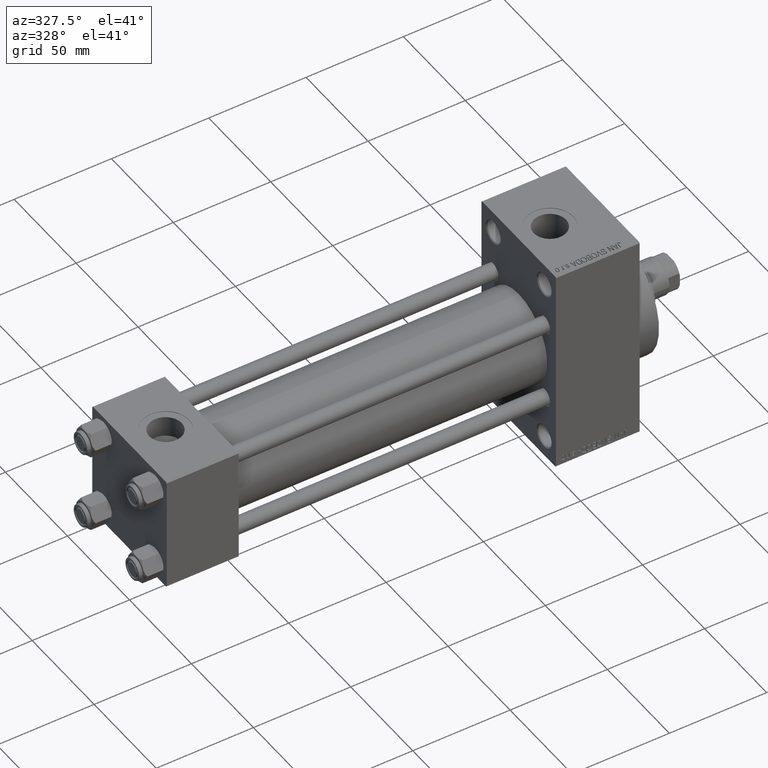
[diagram: clean part render]
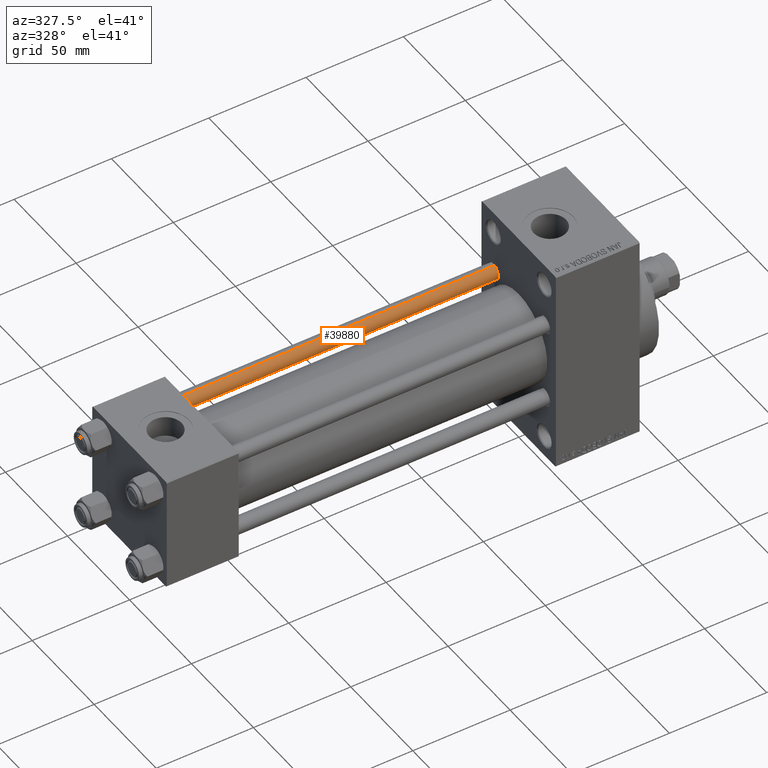
[diagram: same view with one face highlighted and labeled with its STEP entity id]
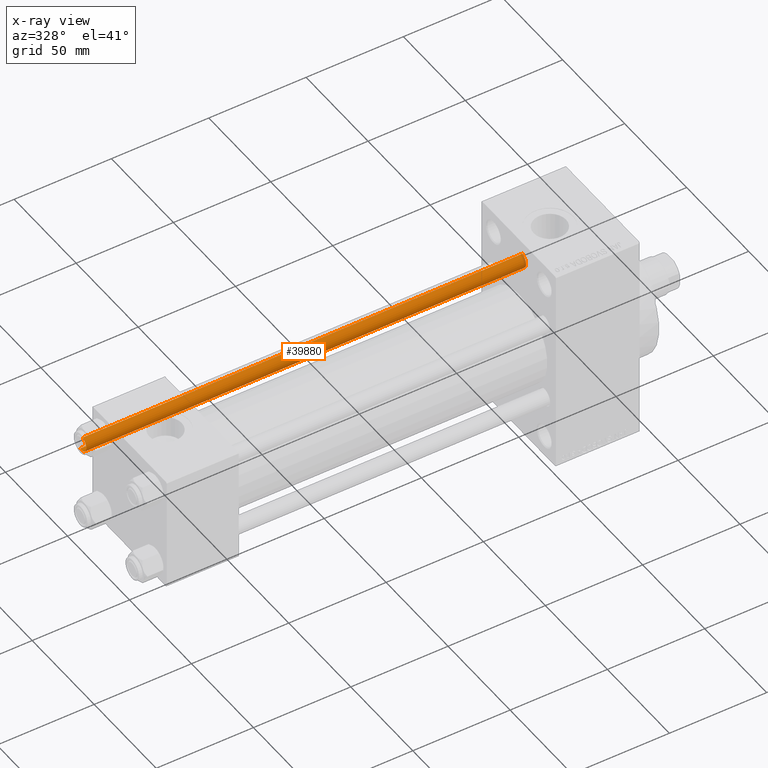
[diagram: x-ray of the same camera — body ghosted, the highlighted face saturated]
A machine part, auxiliary view. The second image highlights one B-rep face of the part: STEP entity #39880.
The next image is the same camera in x-ray: the body ghosted, the highlighted face saturated — about 0% of this face is hidden behind the body in this view.
In plain terms, the highlighted cylindrical surface (edge-blend (fillet) strip) has radius 4 mm, axis along (-1, -0, 0).
Its self-contained STEP definition (entity closure, byte-faithful):
#459 = CARTESIAN_POINT ( 'NONE',  ( -4.000000000000000000, 0.000000000000000000, 0.5000000000002224887 ) ) ;
#4091 = ORIENTED_EDGE ( 'NONE', *, *, #43008, .T. ) ;
#6348 = AXIS2_PLACEMENT_3D ( 'NONE', #23615, #46552, #12402 ) ;
#8027 = VERTEX_POINT ( 'NONE', #45391 ) ;
#8787 = ORIENTED_EDGE ( 'NONE', *, *, #16274, .F. ) ;
#9733 = EDGE_LOOP ( 'NONE', ( #8787, #19231, #4091, #45658 ) ) ;
#12402 = DIRECTION ( 'NONE',  ( 1.000000000000000000, 0.000000000000000000, 0.000000000000000000 ) ) ;
#15628 = AXIS2_PLACEMENT_3D ( 'NONE', #44604, #24893, #37368 ) ;
#15891 = FACE_OUTER_BOUND ( 'NONE', #9733, .T. ) ;
#15902 = DIRECTION ( 'NONE',  ( -0.000000000000000000, -0.000000000000000000, -1.000000000000000000 ) ) ;
#16210 = CARTESIAN_POINT ( 'NONE',  ( -4.000000000000000000, 0.000000000000000000, 227.0000000000000000 ) ) ;
#16274 = EDGE_CURVE ( 'NONE', #26200, #46149, #46318, .T. ) ;
#16381 = VECTOR ( 'NONE', #15902, 1000.000000000000000 ) ;
#19231 = ORIENTED_EDGE ( 'NONE', *, *, #21653, .T. ) ;
#21653 = EDGE_CURVE ( 'NONE', #26200, #8027, #33975, .T. ) ;
#23615 = CARTESIAN_POINT ( 'NONE',  ( 0.000000000000000000, 0.000000000000000000, 0.5000000000002224887 ) ) ;
#23626 = CARTESIAN_POINT ( 'NONE',  ( 4.000000000000000000, 4.898587196589411843E-16, 227.0000000000000000 ) ) ;
#23831 = VERTEX_POINT ( 'NONE', #459 ) ;
#24893 = DIRECTION ( 'NONE',  ( 0.000000000000000000, 0.000000000000000000, -1.000000000000000000 ) ) ;
#26200 = VERTEX_POINT ( 'NONE', #45225 ) ;
#27432 = LINE ( 'NONE', #16210, #31508 ) ;
#28569 = EDGE_CURVE ( 'NONE', #23831, #46149, #32634, .T. ) ;
#29460 = CYLINDRICAL_SURFACE ( 'NONE', #43237, 4.000000000000000000 ) ;
#31508 = VECTOR ( 'NONE', #46139, 1000.000000000000000 ) ;
#32634 = CIRCLE ( 'NONE', #6348, 4.000000000000000000 ) ;
#33442 = DIRECTION ( 'NONE',  ( -1.000000000000000000, 0.000000000000000000, 0.000000000000000000 ) ) ;
#33975 = CIRCLE ( 'NONE', #15628, 4.000000000000000000 ) ;
#34631 = CARTESIAN_POINT ( 'NONE',  ( 4.000000000000000000, 4.898587196589411843E-16, 0.5000000000002224887 ) ) ;
#37368 = DIRECTION ( 'NONE',  ( 1.000000000000000000, 0.000000000000000000, 0.000000000000000000 ) ) ;
#39880 = ADVANCED_FACE ( 'NONE', ( #15891 ), #29460, .T. ) ;
#41411 = DIRECTION ( 'NONE',  ( -0.000000000000000000, -0.000000000000000000, -1.000000000000000000 ) ) ;
#42560 = CARTESIAN_POINT ( 'NONE',  ( 0.000000000000000000, 0.000000000000000000, 227.0000000000000000 ) ) ;
#43008 = EDGE_CURVE ( 'NONE', #8027, #23831, #27432, .T. ) ;
#43237 = AXIS2_PLACEMENT_3D ( 'NONE', #42560, #41411, #33442 ) ;
#44604 = CARTESIAN_POINT ( 'NONE',  ( 0.000000000000000000, 0.000000000000000000, 226.5000000000001421 ) ) ;
#45225 = CARTESIAN_POINT ( 'NONE',  ( 4.000000000000000000, 4.898587196589411843E-16, 226.5000000000001421 ) ) ;
#45391 = CARTESIAN_POINT ( 'NONE',  ( -4.000000000000000000, 0.000000000000000000, 226.5000000000001421 ) ) ;
#45658 = ORIENTED_EDGE ( 'NONE', *, *, #28569, .T. ) ;
#46139 = DIRECTION ( 'NONE',  ( -0.000000000000000000, -0.000000000000000000, -1.000000000000000000 ) ) ;
#46149 = VERTEX_POINT ( 'NONE', #34631 ) ;
#46318 = LINE ( 'NONE', #23626, #16381 ) ;
#46552 = DIRECTION ( 'NONE',  ( -0.000000000000000000, -0.000000000000000000, 1.000000000000000000 ) ) ;